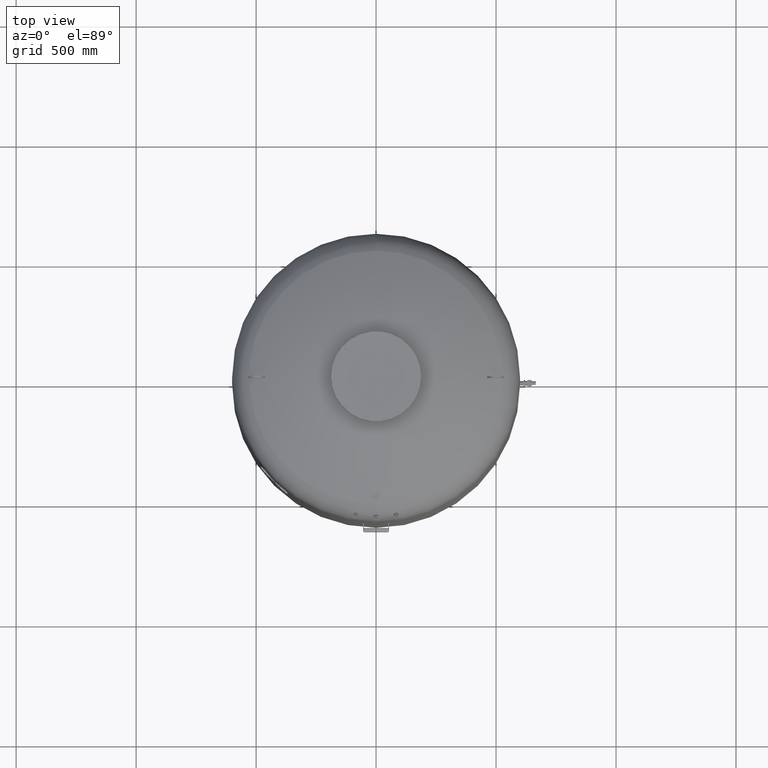
[diagram: clean part render]
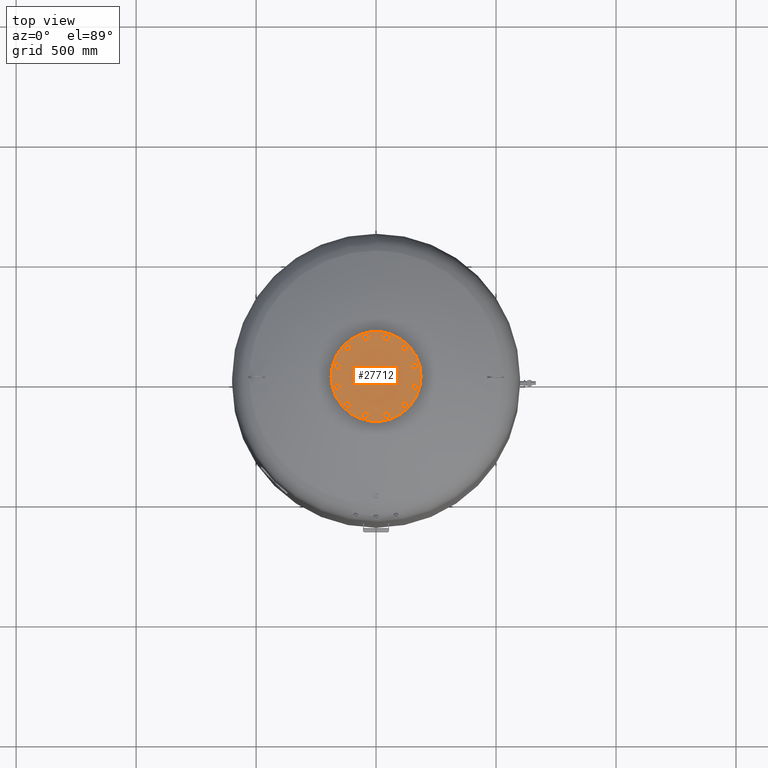
[diagram: same view with one face highlighted and labeled with its STEP entity id]
A machine part, top view. The second image highlights one B-rep face of the part: STEP entity #27712.
In plain terms, the highlighted planar face has unit normal (0, 0, 1).
Its self-contained STEP definition (entity closure, byte-faithful):
#19950=CARTESIAN_POINT('',(-187.500000000000000,0.0,2480.0));
#19951=VERTEX_POINT('',#19950);
#19967=CARTESIAN_POINT('',(187.500000000000000,-2.296137E-014,2480.0));
#19968=VERTEX_POINT('',#19967);
#19975=CARTESIAN_POINT('',(0.0,0.0,2480.0));
#19976=DIRECTION('',(0.0,0.0,-1.0));
#19977=DIRECTION('',(-1.0,0.0,0.0));
#19978=AXIS2_PLACEMENT_3D('',#19975,#19976,#19977);
#19979=CIRCLE('',#19978,187.500000000000000);
#19980=EDGE_CURVE('',#19968,#19951,#19979,.T.);
#25206=CARTESIAN_POINT('',(157.729139400922860,30.104983413641008,2480.0));
#25207=VERTEX_POINT('',#25206);
#25208=CARTESIAN_POINT('',(148.288440171855850,40.247625971983268,2480.0));
#25209=VERTEX_POINT('',#25208);
#25210=CARTESIAN_POINT('',(157.729139400922860,30.104983413641008,2480.0));
#25211=DIRECTION('',(-0.681323780155013,0.731982176419128,0.0));
#25212=VECTOR('',#25211,13.856406460551090);
#25213=LINE('',#25210,#25212);
#25214=EDGE_CURVE('',#25207,#25209,#25213,.T.);
#25246=CARTESIAN_POINT('',(171.233275132485970,33.209547496330110,2480.0));
#25247=VERTEX_POINT('',#25246);
#25248=CARTESIAN_POINT('',(171.233275132485970,33.209547496330110,2480.0));
#25249=DIRECTION('',(-0.974577049973894,-0.224052613607123,0.0));
#25250=VECTOR('',#25249,13.856406460551119);
#25251=LINE('',#25248,#25250);
#25252=EDGE_CURVE('',#25247,#25207,#25251,.T.);
#25277=CARTESIAN_POINT('',(175.296711634982050,46.456754137361422,2480.0));
#25278=VERTEX_POINT('',#25277);
#25279=CARTESIAN_POINT('',(175.296711634982050,46.456754137361422,2480.0));
#25280=DIRECTION('',(-0.293253269818881,-0.956034790026249,0.0));
#25281=VECTOR('',#25280,13.856406460551076);
#25282=LINE('',#25279,#25281);
#25283=EDGE_CURVE('',#25278,#25247,#25282,.T.);
#25308=CARTESIAN_POINT('',(152.351876674351930,53.494832613014587,2480.0));
#25309=VERTEX_POINT('',#25308);
#25310=CARTESIAN_POINT('',(148.288440171855850,40.247625971983268,2480.0));
#25311=DIRECTION('',(0.293253269818881,0.956034790026249,0.0));
#25312=VECTOR('',#25311,13.856406460551083);
#25313=LINE('',#25310,#25312);
#25314=EDGE_CURVE('',#25209,#25309,#25313,.T.);
#25339=CARTESIAN_POINT('',(165.856012405915040,56.599396695703689,2480.0));
#25340=VERTEX_POINT('',#25339);
#25341=CARTESIAN_POINT('',(152.351876674351930,53.494832613014587,2480.0));
#25342=DIRECTION('',(0.974577049973894,0.224052613607123,0.0));
#25343=VECTOR('',#25342,13.856406460551119);
#25344=LINE('',#25341,#25343);
#25345=EDGE_CURVE('',#25309,#25340,#25344,.T.);
#25370=CARTESIAN_POINT('',(165.856012405915040,56.599396695703689,2480.0));
#25371=DIRECTION('',(0.681323780155012,-0.731982176419129,0.0));
#25372=VECTOR('',#25371,13.856406460551096);
#25373=LINE('',#25370,#25372);
#25374=EDGE_CURVE('',#25340,#25278,#25373,.T.);
#25406=CARTESIAN_POINT('',(121.544949931435720,104.936250117183760,2480.0));
#25407=VERTEX_POINT('',#25406);
#25408=CARTESIAN_POINT('',(108.297743290404380,108.999686619679820,2480.0));
#25409=VERTEX_POINT('',#25408);
#25410=CARTESIAN_POINT('',(121.544949931435720,104.936250117183760,2480.0));
#25411=DIRECTION('',(-0.956034790026250,0.293253269818880,0.0));
#25412=VECTOR('',#25411,13.856406460551101);
#25413=LINE('',#25410,#25412);
#25414=EDGE_CURVE('',#25407,#25409,#25413,.T.);
#25446=CARTESIAN_POINT('',(131.687592489777960,114.376949346250780,2480.0));
#25447=VERTEX_POINT('',#25446);
#25448=CARTESIAN_POINT('',(131.687592489777960,114.376949346250780,2480.0));
#25449=DIRECTION('',(-0.731982176419127,-0.681323780155014,0.0));
#25450=VECTOR('',#25449,13.856406460551080);
#25451=LINE('',#25448,#25450);
#25452=EDGE_CURVE('',#25447,#25407,#25451,.T.);
#25477=CARTESIAN_POINT('',(128.583028407088880,127.881085077813880,2480.0));
#25478=VERTEX_POINT('',#25477);
#25479=CARTESIAN_POINT('',(128.583028407088880,127.881085077813880,2480.0));
#25480=DIRECTION('',(0.224052613607122,-0.974577049973894,0.0));
#25481=VECTOR('',#25480,13.856406460551099);
#25482=LINE('',#25479,#25481);
#25483=EDGE_CURVE('',#25478,#25447,#25482,.T.);
#25508=CARTESIAN_POINT('',(105.193179207715300,122.503822351242900,2480.0));
#25509=VERTEX_POINT('',#25508);
#25510=CARTESIAN_POINT('',(108.297743290404380,108.999686619679820,2480.0));
#25511=DIRECTION('',(-0.224052613607122,0.974577049973894,0.0));
#25512=VECTOR('',#25511,13.856406460551087);
#25513=LINE('',#25510,#25512);
#25514=EDGE_CURVE('',#25409,#25509,#25513,.T.);
#25539=CARTESIAN_POINT('',(115.335821766057560,131.944521580309950,2480.0));
#25540=VERTEX_POINT('',#25539);
#25541=CARTESIAN_POINT('',(105.193179207715300,122.503822351242900,2480.0));
#25542=DIRECTION('',(0.731982176419127,0.681323780155014,0.0));
#25543=VECTOR('',#25542,13.856406460551121);
#25544=LINE('',#25541,#25543);
#25545=EDGE_CURVE('',#25509,#25540,#25544,.T.);
#25570=CARTESIAN_POINT('',(115.335821766057560,131.944521580309950,2480.0));
#25571=DIRECTION('',(0.956034790026249,-0.293253269818881,0.0));
#25572=VECTOR('',#25571,13.856406460551076);
#25573=LINE('',#25570,#25572);
#25574=EDGE_CURVE('',#25540,#25478,#25573,.T.);
#25606=CARTESIAN_POINT('',(52.792889283739193,151.649933345076730,2480.0));
#25607=VERTEX_POINT('',#25606);
#25608=CARTESIAN_POINT('',(39.288753552176118,148.545369262387680,2480.0));
#25609=VERTEX_POINT('',#25608);
#25610=CARTESIAN_POINT('',(52.792889283739193,151.649933345076730,2480.0));
#25611=DIRECTION('',(-0.974577049973894,-0.224052613607120,0.0));
#25612=VECTOR('',#25611,13.856406460551073);
#25613=LINE('',#25610,#25612);
#25614=EDGE_CURVE('',#25607,#25609,#25613,.T.);
#25646=CARTESIAN_POINT('',(56.856325786235274,164.897139986108100,2480.0));
#25647=VERTEX_POINT('',#25646);
#25648=CARTESIAN_POINT('',(56.856325786235274,164.897139986108100,2480.0));
#25649=DIRECTION('',(-0.293253269818881,-0.956034790026249,0.0));
#25650=VECTOR('',#25649,13.856406460551133);
#25651=LINE('',#25648,#25650);
#25652=EDGE_CURVE('',#25647,#25607,#25651,.T.);
#25677=CARTESIAN_POINT('',(47.415626557168267,175.039782544450330,2480.0));
#25678=VERTEX_POINT('',#25677);
#25679=CARTESIAN_POINT('',(47.415626557168267,175.039782544450330,2480.0));
#25680=DIRECTION('',(0.681323780155014,-0.731982176419128,0.0));
#25681=VECTOR('',#25680,13.856406460551069);
#25682=LINE('',#25679,#25681);
#25683=EDGE_CURVE('',#25678,#25647,#25682,.T.);
#25708=CARTESIAN_POINT('',(29.848054323109103,158.688011820729910,2480.0));
#25709=VERTEX_POINT('',#25708);
#25710=CARTESIAN_POINT('',(39.288753552176118,148.545369262387680,2480.0));
#25711=DIRECTION('',(-0.681323780155014,0.731982176419127,0.0));
#25712=VECTOR('',#25711,13.856406460551076);
#25713=LINE('',#25710,#25712);
#25714=EDGE_CURVE('',#25609,#25709,#25713,.T.);
#25739=CARTESIAN_POINT('',(33.911490825605156,171.935218461761250,2480.0));
#25740=VERTEX_POINT('',#25739);
#25741=CARTESIAN_POINT('',(29.848054323109103,158.688011820729910,2480.0));
#25742=DIRECTION('',(0.293253269818879,0.956034790026250,0.0));
#25743=VECTOR('',#25742,13.856406460551097);
#25744=LINE('',#25741,#25743);
#25745=EDGE_CURVE('',#25709,#25740,#25744,.T.);
#25770=CARTESIAN_POINT('',(33.911490825605156,171.935218461761250,2480.0));
#25771=DIRECTION('',(0.974577049973894,0.224052613607121,0.0));
#25772=VECTOR('',#25771,13.856406460551113);
#25773=LINE('',#25770,#25772);
#25774=EDGE_CURVE('',#25740,#25678,#25773,.T.);
#25806=CARTESIAN_POINT('',(-30.104983413641008,157.729139400922860,2480.0));
#25807=VERTEX_POINT('',#25806);
#25808=CARTESIAN_POINT('',(-40.247625971983268,148.288440171855850,2480.0));
#25809=VERTEX_POINT('',#25808);
#25810=CARTESIAN_POINT('',(-30.104983413641008,157.729139400922860,2480.0));
#25811=DIRECTION('',(-0.731982176419128,-0.681323780155013,0.0));
#25812=VECTOR('',#25811,13.856406460551090);
#25813=LINE('',#25810,#25812);
#25814=EDGE_CURVE('',#25807,#25809,#25813,.T.);
#25846=CARTESIAN_POINT('',(-33.209547496330110,171.233275132485970,2480.0));
#25847=VERTEX_POINT('',#25846);
#25848=CARTESIAN_POINT('',(-33.209547496330110,171.233275132485970,2480.0));
#25849=DIRECTION('',(0.224052613607123,-0.974577049973894,0.0));
#25850=VECTOR('',#25849,13.856406460551119);
#25851=LINE('',#25848,#25850);
#25852=EDGE_CURVE('',#25847,#25807,#25851,.T.);
#25877=CARTESIAN_POINT('',(-46.456754137361422,175.296711634982050,2480.0));
#25878=VERTEX_POINT('',#25877);
#25879=CARTESIAN_POINT('',(-46.456754137361422,175.296711634982050,2480.0));
#25880=DIRECTION('',(0.956034790026249,-0.293253269818881,0.0));
#25881=VECTOR('',#25880,13.856406460551076);
#25882=LINE('',#25879,#25881);
#25883=EDGE_CURVE('',#25878,#25847,#25882,.T.);
#25908=CARTESIAN_POINT('',(-53.494832613014587,152.351876674351930,2480.0));
#25909=VERTEX_POINT('',#25908);
#25910=CARTESIAN_POINT('',(-40.247625971983268,148.288440171855850,2480.0));
#25911=DIRECTION('',(-0.956034790026249,0.293253269818881,0.0));
#25912=VECTOR('',#25911,13.856406460551083);
#25913=LINE('',#25910,#25912);
#25914=EDGE_CURVE('',#25809,#25909,#25913,.T.);
#25939=CARTESIAN_POINT('',(-56.599396695703689,165.856012405915040,2480.0));
#25940=VERTEX_POINT('',#25939);
#25941=CARTESIAN_POINT('',(-53.494832613014587,152.351876674351930,2480.0));
#25942=DIRECTION('',(-0.224052613607123,0.974577049973894,0.0));
#25943=VECTOR('',#25942,13.856406460551119);
#25944=LINE('',#25941,#25943);
#25945=EDGE_CURVE('',#25909,#25940,#25944,.T.);
#25970=CARTESIAN_POINT('',(-56.599396695703689,165.856012405915040,2480.0));
#25971=DIRECTION('',(0.731982176419129,0.681323780155012,0.0));
#25972=VECTOR('',#25971,13.856406460551096);
#25973=LINE('',#25970,#25972);
#25974=EDGE_CURVE('',#25940,#25878,#25973,.T.);
#26006=CARTESIAN_POINT('',(-104.936250117183700,121.544949931435750,2480.0));
#26007=VERTEX_POINT('',#26006);
#26008=CARTESIAN_POINT('',(-108.999686619679760,108.297743290404440,2480.0));
#26009=VERTEX_POINT('',#26008);
#26010=CARTESIAN_POINT('',(-104.936250117183700,121.544949931435750,2480.0));
#26011=DIRECTION('',(-0.293253269818880,-0.956034790026249,0.0));
#26012=VECTOR('',#26011,13.856406460551073);
#26013=LINE('',#26010,#26012);
#26014=EDGE_CURVE('',#26007,#26009,#26013,.T.);
#26046=CARTESIAN_POINT('',(-114.376949346250730,131.687592489778010,2480.0));
#26047=VERTEX_POINT('',#26046);
#26048=CARTESIAN_POINT('',(-114.376949346250730,131.687592489778010,2480.0));
#26049=DIRECTION('',(0.681323780155013,-0.731982176419128,0.0));
#26050=VECTOR('',#26049,13.856406460551101);
#26051=LINE('',#26048,#26050);
#26052=EDGE_CURVE('',#26047,#26007,#26051,.T.);
#26077=CARTESIAN_POINT('',(-127.881085077813810,128.583028407088930,2480.0));
#26078=VERTEX_POINT('',#26077);
#26079=CARTESIAN_POINT('',(-127.881085077813810,128.583028407088930,2480.0));
#26080=DIRECTION('',(0.974577049973894,0.224052613607122,0.0));
#26081=VECTOR('',#26080,13.856406460551087);
#26082=LINE('',#26079,#26081);
#26083=EDGE_CURVE('',#26078,#26047,#26082,.T.);
#26108=CARTESIAN_POINT('',(-122.503822351242850,105.193179207715360,2480.0));
#26109=VERTEX_POINT('',#26108);
#26110=CARTESIAN_POINT('',(-108.999686619679760,108.297743290404440,2480.0));
#26111=DIRECTION('',(-0.974577049973894,-0.224052613607122,0.0));
#26112=VECTOR('',#26111,13.856406460551087);
#26113=LINE('',#26110,#26112);
#26114=EDGE_CURVE('',#26009,#26109,#26113,.T.);
#26139=CARTESIAN_POINT('',(-131.944521580309900,115.335821766057620,2480.0));
#26140=VERTEX_POINT('',#26139);
#26141=CARTESIAN_POINT('',(-122.503822351242850,105.193179207715360,2480.0));
#26142=DIRECTION('',(-0.681323780155014,0.731982176419127,0.0));
#26143=VECTOR('',#26142,13.856406460551121);
#26144=LINE('',#26141,#26143);
#26145=EDGE_CURVE('',#26109,#26140,#26144,.T.);
#26170=CARTESIAN_POINT('',(-131.944521580309900,115.335821766057620,2480.0));
#26171=DIRECTION('',(0.293253269818882,0.956034790026249,0.0));
#26172=VECTOR('',#26171,13.856406460551081);
#26173=LINE('',#26170,#26172);
#26174=EDGE_CURVE('',#26140,#26078,#26173,.T.);
#26206=CARTESIAN_POINT('',(-151.649933345076730,52.792889283739214,2480.0));
#26207=VERTEX_POINT('',#26206);
#26208=CARTESIAN_POINT('',(-148.545369262387650,39.288753552176125,2480.0));
#26209=VERTEX_POINT('',#26208);
#26210=CARTESIAN_POINT('',(-151.649933345076730,52.792889283739214,2480.0));
#26211=DIRECTION('',(0.224052613607122,-0.974577049973894,0.0));
#26212=VECTOR('',#26211,13.856406460551092);
#26213=LINE('',#26210,#26212);
#26214=EDGE_CURVE('',#26207,#26209,#26213,.T.);
#26246=CARTESIAN_POINT('',(-164.897139986108100,56.856325786235296,2480.0));
#26247=VERTEX_POINT('',#26246);
#26248=CARTESIAN_POINT('',(-164.897139986108100,56.856325786235296,2480.0));
#26249=DIRECTION('',(0.956034790026249,-0.293253269818881,0.0));
#26250=VECTOR('',#26249,13.856406460551133);
#26251=LINE('',#26248,#26250);
#26252=EDGE_CURVE('',#26247,#26207,#26251,.T.);
#26277=CARTESIAN_POINT('',(-175.039782544450300,47.415626557168260,2480.0));
#26278=VERTEX_POINT('',#26277);
#26279=CARTESIAN_POINT('',(-175.039782544450300,47.415626557168260,2480.0));
#26280=DIRECTION('',(0.731982176419126,0.681323780155016,0.0));
#26281=VECTOR('',#26280,13.856406460551069);
#26282=LINE('',#26279,#26281);
#26283=EDGE_CURVE('',#26278,#26247,#26282,.T.);
#26308=CARTESIAN_POINT('',(-158.688011820729910,29.848054323109110,2480.0));
#26309=VERTEX_POINT('',#26308);
#26310=CARTESIAN_POINT('',(-148.545369262387650,39.288753552176125,2480.0));
#26311=DIRECTION('',(-0.731982176419128,-0.681323780155013,0.0));
#26312=VECTOR('',#26311,13.856406460551096);
#26313=LINE('',#26310,#26312);
#26314=EDGE_CURVE('',#26209,#26309,#26313,.T.);
#26339=CARTESIAN_POINT('',(-171.935218461761250,33.911490825605171,2480.0));
#26340=VERTEX_POINT('',#26339);
#26341=CARTESIAN_POINT('',(-158.688011820729910,29.848054323109110,2480.0));
#26342=DIRECTION('',(-0.956034790026250,0.293253269818880,0.0));
#26343=VECTOR('',#26342,13.856406460551101);
#26344=LINE('',#26341,#26343);
#26345=EDGE_CURVE('',#26309,#26340,#26344,.T.);
#26370=CARTESIAN_POINT('',(-171.935218461761250,33.911490825605171,2480.0));
#26371=DIRECTION('',(-0.224052613607120,0.974577049973894,0.0));
#26372=VECTOR('',#26371,13.856406460551087);
#26373=LINE('',#26370,#26372);
#26374=EDGE_CURVE('',#26340,#26278,#26373,.T.);
#26406=CARTESIAN_POINT('',(-157.729139400922860,-30.104983413640987,2480.0));
#26407=VERTEX_POINT('',#26406);
#26408=CARTESIAN_POINT('',(-148.288440171855850,-40.247625971983247,2480.0));
#26409=VERTEX_POINT('',#26408);
#26410=CARTESIAN_POINT('',(-157.729139400922860,-30.104983413640987,2480.0));
#26411=DIRECTION('',(0.681323780155013,-0.731982176419128,0.0));
#26412=VECTOR('',#26411,13.856406460551090);
#26413=LINE('',#26410,#26412);
#26414=EDGE_CURVE('',#26407,#26409,#26413,.T.);
#26446=CARTESIAN_POINT('',(-171.233275132486000,-33.209547496330096,2480.0));
#26447=VERTEX_POINT('',#26446);
#26448=CARTESIAN_POINT('',(-171.233275132486000,-33.209547496330096,2480.0));
#26449=DIRECTION('',(0.974577049973894,0.224052613607123,0.0));
#26450=VECTOR('',#26449,13.856406460551147);
#26451=LINE('',#26448,#26450);
#26452=EDGE_CURVE('',#26447,#26407,#26451,.T.);
#26477=CARTESIAN_POINT('',(-175.296711634982050,-46.456754137361401,2480.0));
#26478=VERTEX_POINT('',#26477);
#26479=CARTESIAN_POINT('',(-175.296711634982050,-46.456754137361401,2480.0));
#26480=DIRECTION('',(0.293253269818880,0.956034790026250,0.0));
#26481=VECTOR('',#26480,13.856406460551062);
#26482=LINE('',#26479,#26481);
#26483=EDGE_CURVE('',#26478,#26447,#26482,.T.);
#26508=CARTESIAN_POINT('',(-152.351876674351960,-53.494832613014580,2480.0));
#26509=VERTEX_POINT('',#26508);
#26510=CARTESIAN_POINT('',(-148.288440171855850,-40.247625971983247,2480.0));
#26511=DIRECTION('',(-0.293253269818883,-0.956034790026249,0.0));
#26512=VECTOR('',#26511,13.856406460551106);
#26513=LINE('',#26510,#26512);
#26514=EDGE_CURVE('',#26409,#26509,#26513,.T.);
#26539=CARTESIAN_POINT('',(-165.856012405915070,-56.599396695703646,2480.0));
#26540=VERTEX_POINT('',#26539);
#26541=CARTESIAN_POINT('',(-152.351876674351960,-53.494832613014580,2480.0));
#26542=DIRECTION('',(-0.974577049973894,-0.224052613607121,0.0));
#26543=VECTOR('',#26542,13.856406460551110);
#26544=LINE('',#26541,#26543);
#26545=EDGE_CURVE('',#26509,#26540,#26544,.T.);
#26570=CARTESIAN_POINT('',(-165.856012405915070,-56.599396695703646,2480.0));
#26571=DIRECTION('',(-0.681323780155012,0.731982176419129,0.0));
#26572=VECTOR('',#26571,13.856406460551062);
#26573=LINE('',#26570,#26572);
#26574=EDGE_CURVE('',#26540,#26478,#26573,.T.);
#26606=CARTESIAN_POINT('',(-121.544949931435750,-104.936250117183680,2480.0));
#26607=VERTEX_POINT('',#26606);
#26608=CARTESIAN_POINT('',(-108.297743290404440,-108.999686619679760,2480.0));
#26609=VERTEX_POINT('',#26608);
#26610=CARTESIAN_POINT('',(-121.544949931435750,-104.936250117183680,2480.0));
#26611=DIRECTION('',(0.956034790026249,-0.293253269818882,0.0));
#26612=VECTOR('',#26611,13.856406460551081);
#26613=LINE('',#26610,#26612);
#26614=EDGE_CURVE('',#26607,#26609,#26613,.T.);
#26646=CARTESIAN_POINT('',(-131.687592489778010,-114.376949346250730,2480.0));
#26647=VERTEX_POINT('',#26646);
#26648=CARTESIAN_POINT('',(-131.687592489778010,-114.376949346250730,2480.0));
#26649=DIRECTION('',(0.731982176419127,0.681323780155014,0.0));
#26650=VECTOR('',#26649,13.856406460551121);
#26651=LINE('',#26648,#26650);
#26652=EDGE_CURVE('',#26647,#26607,#26651,.T.);
#26677=CARTESIAN_POINT('',(-128.583028407088930,-127.881085077813790,2480.0));
#26678=VERTEX_POINT('',#26677);
#26679=CARTESIAN_POINT('',(-128.583028407088930,-127.881085077813790,2480.0));
#26680=DIRECTION('',(-0.224052613607122,0.974577049973894,0.0));
#26681=VECTOR('',#26680,13.856406460551071);
#26682=LINE('',#26679,#26681);
#26683=EDGE_CURVE('',#26678,#26647,#26682,.T.);
#26708=CARTESIAN_POINT('',(-105.193179207715360,-122.503822351242850,2480.0));
#26709=VERTEX_POINT('',#26708);
#26710=CARTESIAN_POINT('',(-108.297743290404440,-108.999686619679760,2480.0));
#26711=DIRECTION('',(0.224052613607122,-0.974577049973894,0.0));
#26712=VECTOR('',#26711,13.856406460551087);
#26713=LINE('',#26710,#26712);
#26714=EDGE_CURVE('',#26609,#26709,#26713,.T.);
#26739=CARTESIAN_POINT('',(-115.335821766057620,-131.944521580309900,2480.0));
#26740=VERTEX_POINT('',#26739);
#26741=CARTESIAN_POINT('',(-105.193179207715360,-122.503822351242850,2480.0));
#26742=DIRECTION('',(-0.731982176419127,-0.681323780155014,0.0));
#26743=VECTOR('',#26742,13.856406460551121);
#26744=LINE('',#26741,#26743);
#26745=EDGE_CURVE('',#26709,#26740,#26744,.T.);
#26770=CARTESIAN_POINT('',(-115.335821766057620,-131.944521580309900,2480.0));
#26771=DIRECTION('',(-0.956034790026249,0.293253269818883,0.0));
#26772=VECTOR('',#26771,13.856406460551085);
#26773=LINE('',#26770,#26772);
#26774=EDGE_CURVE('',#26740,#26678,#26773,.T.);
#26806=CARTESIAN_POINT('',(-52.792889283739228,-151.649933345076730,2480.0));
#26807=VERTEX_POINT('',#26806);
#26808=CARTESIAN_POINT('',(-39.288753552176132,-148.545369262387680,2480.0));
#26809=VERTEX_POINT('',#26808);
#26810=CARTESIAN_POINT('',(-52.792889283739228,-151.649933345076730,2480.0));
#26811=DIRECTION('',(0.974577049973894,0.224052613607120,0.0));
#26812=VECTOR('',#26811,13.856406460551094);
#26813=LINE('',#26810,#26812);
#26814=EDGE_CURVE('',#26807,#26809,#26813,.T.);
#26846=CARTESIAN_POINT('',(-56.856325786235296,-164.897139986108100,2480.0));
#26847=VERTEX_POINT('',#26846);
#26848=CARTESIAN_POINT('',(-56.856325786235296,-164.897139986108100,2480.0));
#26849=DIRECTION('',(0.293253269818880,0.956034790026250,0.0));
#26850=VECTOR('',#26849,13.856406460551129);
#26851=LINE('',#26848,#26850);
#26852=EDGE_CURVE('',#26847,#26807,#26851,.T.);
#26877=CARTESIAN_POINT('',(-47.415626557168281,-175.039782544450300,2480.0));
#26878=VERTEX_POINT('',#26877);
#26879=CARTESIAN_POINT('',(-47.415626557168281,-175.039782544450300,2480.0));
#26880=DIRECTION('',(-0.681323780155015,0.731982176419126,0.0));
#26881=VECTOR('',#26880,13.856406460551055);
#26882=LINE('',#26879,#26881);
#26883=EDGE_CURVE('',#26878,#26847,#26882,.T.);
#26908=CARTESIAN_POINT('',(-29.848054323109121,-158.688011820729910,2480.0));
#26909=VERTEX_POINT('',#26908);
#26910=CARTESIAN_POINT('',(-39.288753552176132,-148.545369262387680,2480.0));
#26911=DIRECTION('',(0.681323780155014,-0.731982176419127,0.0));
#26912=VECTOR('',#26911,13.856406460551073);
#26913=LINE('',#26910,#26912);
#26914=EDGE_CURVE('',#26809,#26909,#26913,.T.);
#26939=CARTESIAN_POINT('',(-33.911490825605199,-171.935218461761280,2480.0));
#26940=VERTEX_POINT('',#26939);
#26941=CARTESIAN_POINT('',(-29.848054323109121,-158.688011820729910,2480.0));
#26942=DIRECTION('',(-0.293253269818880,-0.956034790026249,0.0));
#26943=VECTOR('',#26942,13.856406460551133);
#26944=LINE('',#26941,#26943);
#26945=EDGE_CURVE('',#26909,#26940,#26944,.T.);
#26970=CARTESIAN_POINT('',(-33.911490825605199,-171.935218461761280,2480.0));
#26971=DIRECTION('',(-0.974577049973895,-0.224052613607118,0.0));
#26972=VECTOR('',#26971,13.856406460551074);
#26973=LINE('',#26970,#26972);
#26974=EDGE_CURVE('',#26940,#26878,#26973,.T.);
#27006=CARTESIAN_POINT('',(30.104983413640952,-157.729139400922890,2480.0));
#27007=VERTEX_POINT('',#27006);
#27008=CARTESIAN_POINT('',(40.247625971983211,-148.288440171855880,2480.0));
#27009=VERTEX_POINT('',#27008);
#27010=CARTESIAN_POINT('',(30.104983413640952,-157.729139400922890,2480.0));
#27011=DIRECTION('',(0.731982176419128,0.681323780155013,0.0));
#27012=VECTOR('',#27011,13.856406460551090);
#27013=LINE('',#27010,#27012);
#27014=EDGE_CURVE('',#27007,#27009,#27013,.T.);
#27046=CARTESIAN_POINT('',(33.209547496330039,-171.233275132486000,2480.0));
#27047=VERTEX_POINT('',#27046);
#27048=CARTESIAN_POINT('',(33.209547496330039,-171.233275132486000,2480.0));
#27049=DIRECTION('',(-0.224052613607122,0.974577049973894,0.0));
#27050=VECTOR('',#27049,13.856406460551115);
#27051=LINE('',#27048,#27050);
#27052=EDGE_CURVE('',#27047,#27007,#27051,.T.);
#27077=CARTESIAN_POINT('',(46.456754137361351,-175.296711634982070,2480.0));
#27078=VERTEX_POINT('',#27077);
#27079=CARTESIAN_POINT('',(46.456754137361351,-175.296711634982070,2480.0));
#27080=DIRECTION('',(-0.956034790026249,0.293253269818881,0.0));
#27081=VECTOR('',#27080,13.856406460551076);
#27082=LINE('',#27079,#27081);
#27083=EDGE_CURVE('',#27078,#27047,#27082,.T.);
#27108=CARTESIAN_POINT('',(53.494832613014523,-152.351876674351960,2480.0));
#27109=VERTEX_POINT('',#27108);
#27110=CARTESIAN_POINT('',(40.247625971983211,-148.288440171855880,2480.0));
#27111=DIRECTION('',(0.956034790026249,-0.293253269818881,0.0));
#27112=VECTOR('',#27111,13.856406460551076);
#27113=LINE('',#27110,#27112);
#27114=EDGE_CURVE('',#27009,#27109,#27113,.T.);
#27139=CARTESIAN_POINT('',(56.599396695703625,-165.856012405915070,2480.0));
#27140=VERTEX_POINT('',#27139);
#27141=CARTESIAN_POINT('',(53.494832613014523,-152.351876674351960,2480.0));
#27142=DIRECTION('',(0.224052613607123,-0.974577049973894,0.0));
#27143=VECTOR('',#27142,13.856406460551119);
#27144=LINE('',#27141,#27143);
#27145=EDGE_CURVE('',#27109,#27140,#27144,.T.);
#27170=CARTESIAN_POINT('',(56.599396695703625,-165.856012405915070,2480.0));
#27171=DIRECTION('',(-0.731982176419129,-0.681323780155012,0.0));
#27172=VECTOR('',#27171,13.856406460551101);
#27173=LINE('',#27170,#27172);
#27174=EDGE_CURVE('',#27140,#27078,#27173,.T.);
#27206=CARTESIAN_POINT('',(104.936250117183660,-121.544949931435800,2480.0));
#27207=VERTEX_POINT('',#27206);
#27208=CARTESIAN_POINT('',(108.999686619679750,-108.297743290404470,2480.0));
#27209=VERTEX_POINT('',#27208);
#27210=CARTESIAN_POINT('',(104.936250117183660,-121.544949931435800,2480.0));
#27211=DIRECTION('',(0.293253269818882,0.956034790026249,0.0));
#27212=VECTOR('',#27211,13.856406460551094);
#27213=LINE('',#27210,#27212);
#27214=EDGE_CURVE('',#27207,#27209,#27213,.T.);
#27246=CARTESIAN_POINT('',(114.376949346250710,-131.687592489778040,2480.0));
#27247=VERTEX_POINT('',#27246);
#27248=CARTESIAN_POINT('',(114.376949346250710,-131.687592489778040,2480.0));
#27249=DIRECTION('',(-0.681323780155015,0.731982176419126,0.0));
#27250=VECTOR('',#27249,13.856406460551110);
#27251=LINE('',#27248,#27250);
#27252=EDGE_CURVE('',#27247,#27207,#27251,.T.);
#27277=CARTESIAN_POINT('',(127.881085077813760,-128.583028407088960,2480.0));
#27278=VERTEX_POINT('',#27277);
#27279=CARTESIAN_POINT('',(127.881085077813760,-128.583028407088960,2480.0));
#27280=DIRECTION('',(-0.974577049973894,-0.224052613607122,0.0));
#27281=VECTOR('',#27280,13.856406460551058);
#27282=LINE('',#27279,#27281);
#27283=EDGE_CURVE('',#27278,#27247,#27282,.T.);
#27308=CARTESIAN_POINT('',(122.503822351242830,-105.193179207715390,2480.0));
#27309=VERTEX_POINT('',#27308);
#27310=CARTESIAN_POINT('',(108.999686619679750,-108.297743290404470,2480.0));
#27311=DIRECTION('',(0.974577049973894,0.224052613607122,0.0));
#27312=VECTOR('',#27311,13.856406460551087);
#27313=LINE('',#27310,#27312);
#27314=EDGE_CURVE('',#27209,#27309,#27313,.T.);
#27339=CARTESIAN_POINT('',(131.944521580309870,-115.335821766057650,2480.0));
#27340=VERTEX_POINT('',#27339);
#27341=CARTESIAN_POINT('',(122.503822351242830,-105.193179207715390,2480.0));
#27342=DIRECTION('',(0.681323780155014,-0.731982176419127,0.0));
#27343=VECTOR('',#27342,13.856406460551110);
#27344=LINE('',#27341,#27343);
#27345=EDGE_CURVE('',#27309,#27340,#27344,.T.);
#27370=CARTESIAN_POINT('',(131.944521580309870,-115.335821766057650,2480.0));
#27371=DIRECTION('',(-0.293253269818883,-0.956034790026249,0.0));
#27372=VECTOR('',#27371,13.856406460551085);
#27373=LINE('',#27370,#27372);
#27374=EDGE_CURVE('',#27340,#27278,#27373,.T.);
#27406=CARTESIAN_POINT('',(151.649933345076730,-52.792889283739228,2480.0));
#27407=VERTEX_POINT('',#27406);
#27408=CARTESIAN_POINT('',(148.545369262387650,-39.288753552176139,2480.0));
#27409=VERTEX_POINT('',#27408);
#27410=CARTESIAN_POINT('',(151.649933345076730,-52.792889283739228,2480.0));
#27411=DIRECTION('',(-0.224052613607122,0.974577049973894,0.0));
#27412=VECTOR('',#27411,13.856406460551092);
#27413=LINE('',#27410,#27412);
#27414=EDGE_CURVE('',#27407,#27409,#27413,.T.);
#27446=CARTESIAN_POINT('',(164.897139986108070,-56.856325786235303,2480.0));
#27447=VERTEX_POINT('',#27446);
#27448=CARTESIAN_POINT('',(164.897139986108070,-56.856325786235303,2480.0));
#27449=DIRECTION('',(-0.956034790026249,0.293253269818881,0.0));
#27450=VECTOR('',#27449,13.856406460551105);
#27451=LINE('',#27448,#27450);
#27452=EDGE_CURVE('',#27447,#27407,#27451,.T.);
#27477=CARTESIAN_POINT('',(175.039782544450300,-47.415626557168295,2480.0));
#27478=VERTEX_POINT('',#27477);
#27479=CARTESIAN_POINT('',(175.039782544450300,-47.415626557168295,2480.0));
#27480=DIRECTION('',(-0.731982176419128,-0.681323780155014,0.0));
#27481=VECTOR('',#27480,13.856406460551069);
#27482=LINE('',#27479,#27481);
#27483=EDGE_CURVE('',#27478,#27447,#27482,.T.);
#27508=CARTESIAN_POINT('',(158.688011820729910,-29.848054323109132,2480.0));
#27509=VERTEX_POINT('',#27508);
#27510=CARTESIAN_POINT('',(148.545369262387650,-39.288753552176139,2480.0));
#27511=DIRECTION('',(0.731982176419128,0.681323780155013,0.0));
#27512=VECTOR('',#27511,13.856406460551090);
#27513=LINE('',#27510,#27512);
#27514=EDGE_CURVE('',#27409,#27509,#27513,.T.);
#27539=CARTESIAN_POINT('',(171.935218461761250,-33.911490825605206,2480.0));
#27540=VERTEX_POINT('',#27539);
#27541=CARTESIAN_POINT('',(158.688011820729910,-29.848054323109132,2480.0));
#27542=DIRECTION('',(0.956034790026249,-0.293253269818881,0.0));
#27543=VECTOR('',#27542,13.856406460551105);
#27544=LINE('',#27541,#27543);
#27545=EDGE_CURVE('',#27509,#27540,#27544,.T.);
#27570=CARTESIAN_POINT('',(171.935218461761250,-33.911490825605206,2480.0));
#27571=DIRECTION('',(0.224052613607120,-0.974577049973894,0.0));
#27572=VECTOR('',#27571,13.856406460551087);
#27573=LINE('',#27570,#27572);
#27574=EDGE_CURVE('',#27540,#27478,#27573,.T.);
#27601=CARTESIAN_POINT('',(-93.750000000000000,-7.888609E-031,2480.0));
#27602=DIRECTION('',(0.0,0.0,1.0));
#27603=DIRECTION('',(0.0,1.0,0.0));
#27604=AXIS2_PLACEMENT_3D('',#27601,#27602,#27603);
#27605=PLANE('',#27604);
#27606=CARTESIAN_POINT('',(0.0,0.0,2480.0));
#27607=DIRECTION('',(0.0,0.0,-1.0));
#27608=DIRECTION('',(-1.0,0.0,0.0));
#27609=AXIS2_PLACEMENT_3D('',#27606,#27607,#27608);
#27610=CIRCLE('',#27609,187.500000000000000);
#27611=EDGE_CURVE('',#19951,#19968,#27610,.T.);
#27612=ORIENTED_EDGE('',*,*,#27611,.F.);
#27613=ORIENTED_EDGE('',*,*,#19980,.F.);
#27614=EDGE_LOOP('',(#27612,#27613));
#27615=FACE_OUTER_BOUND('',#27614,.T.);
#27616=ORIENTED_EDGE('',*,*,#25214,.T.);
#27617=ORIENTED_EDGE('',*,*,#25314,.T.);
#27618=ORIENTED_EDGE('',*,*,#25345,.T.);
#27619=ORIENTED_EDGE('',*,*,#25374,.T.);
#27620=ORIENTED_EDGE('',*,*,#25283,.T.);
#27621=ORIENTED_EDGE('',*,*,#25252,.T.);
#27622=EDGE_LOOP('',(#27616,#27617,#27618,#27619,#27620,#27621));
#27623=FACE_BOUND('',#27622,.T.);
#27624=ORIENTED_EDGE('',*,*,#25414,.T.);
#27625=ORIENTED_EDGE('',*,*,#25514,.T.);
#27626=ORIENTED_EDGE('',*,*,#25545,.T.);
#27627=ORIENTED_EDGE('',*,*,#25574,.T.);
#27628=ORIENTED_EDGE('',*,*,#25483,.T.);
#27629=ORIENTED_EDGE('',*,*,#25452,.T.);
#27630=EDGE_LOOP('',(#27624,#27625,#27626,#27627,#27628,#27629));
#27631=FACE_BOUND('',#27630,.T.);
#27632=ORIENTED_EDGE('',*,*,#25614,.T.);
#27633=ORIENTED_EDGE('',*,*,#25714,.T.);
#27634=ORIENTED_EDGE('',*,*,#25745,.T.);
#27635=ORIENTED_EDGE('',*,*,#25774,.T.);
#27636=ORIENTED_EDGE('',*,*,#25683,.T.);
#27637=ORIENTED_EDGE('',*,*,#25652,.T.);
#27638=EDGE_LOOP('',(#27632,#27633,#27634,#27635,#27636,#27637));
#27639=FACE_BOUND('',#27638,.T.);
#27640=ORIENTED_EDGE('',*,*,#25814,.T.);
#27641=ORIENTED_EDGE('',*,*,#25914,.T.);
#27642=ORIENTED_EDGE('',*,*,#25945,.T.);
#27643=ORIENTED_EDGE('',*,*,#25974,.T.);
#27644=ORIENTED_EDGE('',*,*,#25883,.T.);
#27645=ORIENTED_EDGE('',*,*,#25852,.T.);
#27646=EDGE_LOOP('',(#27640,#27641,#27642,#27643,#27644,#27645));
#27647=FACE_BOUND('',#27646,.T.);
#27648=ORIENTED_EDGE('',*,*,#26014,.T.);
#27649=ORIENTED_EDGE('',*,*,#26114,.T.);
#27650=ORIENTED_EDGE('',*,*,#26145,.T.);
#27651=ORIENTED_EDGE('',*,*,#26174,.T.);
#27652=ORIENTED_EDGE('',*,*,#26083,.T.);
#27653=ORIENTED_EDGE('',*,*,#26052,.T.);
#27654=EDGE_LOOP('',(#27648,#27649,#27650,#27651,#27652,#27653));
#27655=FACE_BOUND('',#27654,.T.);
#27656=ORIENTED_EDGE('',*,*,#26214,.T.);
#27657=ORIENTED_EDGE('',*,*,#26314,.T.);
#27658=ORIENTED_EDGE('',*,*,#26345,.T.);
#27659=ORIENTED_EDGE('',*,*,#26374,.T.);
#27660=ORIENTED_EDGE('',*,*,#26283,.T.);
#27661=ORIENTED_EDGE('',*,*,#26252,.T.);
#27662=EDGE_LOOP('',(#27656,#27657,#27658,#27659,#27660,#27661));
#27663=FACE_BOUND('',#27662,.T.);
#27664=ORIENTED_EDGE('',*,*,#26414,.T.);
#27665=ORIENTED_EDGE('',*,*,#26514,.T.);
#27666=ORIENTED_EDGE('',*,*,#26545,.T.);
#27667=ORIENTED_EDGE('',*,*,#26574,.T.);
#27668=ORIENTED_EDGE('',*,*,#26483,.T.);
#27669=ORIENTED_EDGE('',*,*,#26452,.T.);
#27670=EDGE_LOOP('',(#27664,#27665,#27666,#27667,#27668,#27669));
#27671=FACE_BOUND('',#27670,.T.);
#27672=ORIENTED_EDGE('',*,*,#26614,.T.);
#27673=ORIENTED_EDGE('',*,*,#26714,.T.);
#27674=ORIENTED_EDGE('',*,*,#26745,.T.);
#27675=ORIENTED_EDGE('',*,*,#26774,.T.);
#27676=ORIENTED_EDGE('',*,*,#26683,.T.);
#27677=ORIENTED_EDGE('',*,*,#26652,.T.);
#27678=EDGE_LOOP('',(#27672,#27673,#27674,#27675,#27676,#27677));
#27679=FACE_BOUND('',#27678,.T.);
#27680=ORIENTED_EDGE('',*,*,#26814,.T.);
#27681=ORIENTED_EDGE('',*,*,#26914,.T.);
#27682=ORIENTED_EDGE('',*,*,#26945,.T.);
#27683=ORIENTED_EDGE('',*,*,#26974,.T.);
#27684=ORIENTED_EDGE('',*,*,#26883,.T.);
#27685=ORIENTED_EDGE('',*,*,#26852,.T.);
#27686=EDGE_LOOP('',(#27680,#27681,#27682,#27683,#27684,#27685));
#27687=FACE_BOUND('',#27686,.T.);
#27688=ORIENTED_EDGE('',*,*,#27014,.T.);
#27689=ORIENTED_EDGE('',*,*,#27114,.T.);
#27690=ORIENTED_EDGE('',*,*,#27145,.T.);
#27691=ORIENTED_EDGE('',*,*,#27174,.T.);
#27692=ORIENTED_EDGE('',*,*,#27083,.T.);
#27693=ORIENTED_EDGE('',*,*,#27052,.T.);
#27694=EDGE_LOOP('',(#27688,#27689,#27690,#27691,#27692,#27693));
#27695=FACE_BOUND('',#27694,.T.);
#27696=ORIENTED_EDGE('',*,*,#27214,.T.);
#27697=ORIENTED_EDGE('',*,*,#27314,.T.);
#27698=ORIENTED_EDGE('',*,*,#27345,.T.);
#27699=ORIENTED_EDGE('',*,*,#27374,.T.);
#27700=ORIENTED_EDGE('',*,*,#27283,.T.);
#27701=ORIENTED_EDGE('',*,*,#27252,.T.);
#27702=EDGE_LOOP('',(#27696,#27697,#27698,#27699,#27700,#27701));
#27703=FACE_BOUND('',#27702,.T.);
#27704=ORIENTED_EDGE('',*,*,#27414,.T.);
#27705=ORIENTED_EDGE('',*,*,#27514,.T.);
#27706=ORIENTED_EDGE('',*,*,#27545,.T.);
#27707=ORIENTED_EDGE('',*,*,#27574,.T.);
#27708=ORIENTED_EDGE('',*,*,#27483,.T.);
#27709=ORIENTED_EDGE('',*,*,#27452,.T.);
#27710=EDGE_LOOP('',(#27704,#27705,#27706,#27707,#27708,#27709));
#27711=FACE_BOUND('',#27710,.T.);
#27712=ADVANCED_FACE('',(#27615,#27623,#27631,#27639,#27647,#27655,#27663,#27671,#27679,#27687,#27695,#27703,#27711),#27605,.T.);